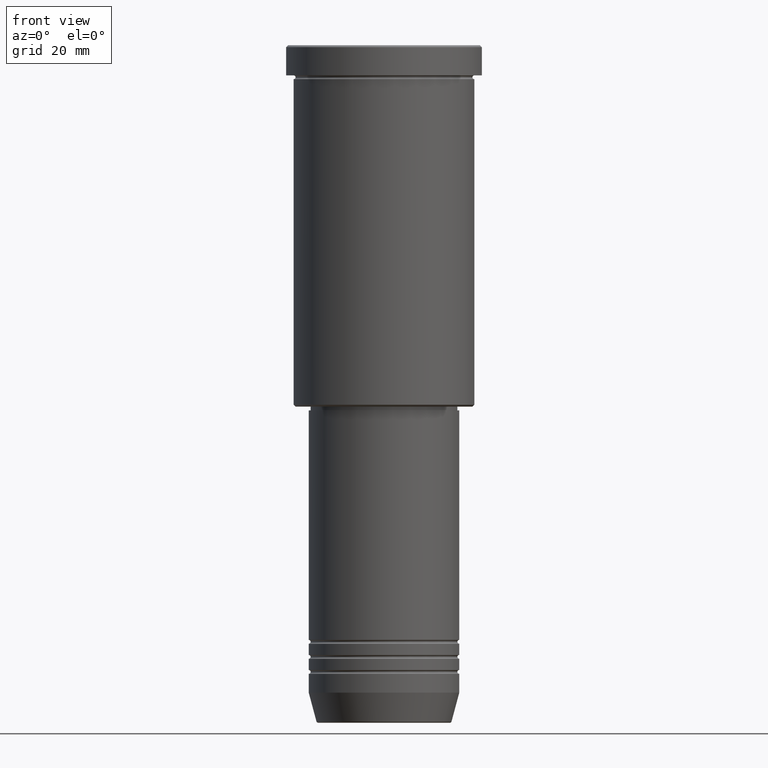
[diagram: clean part render]
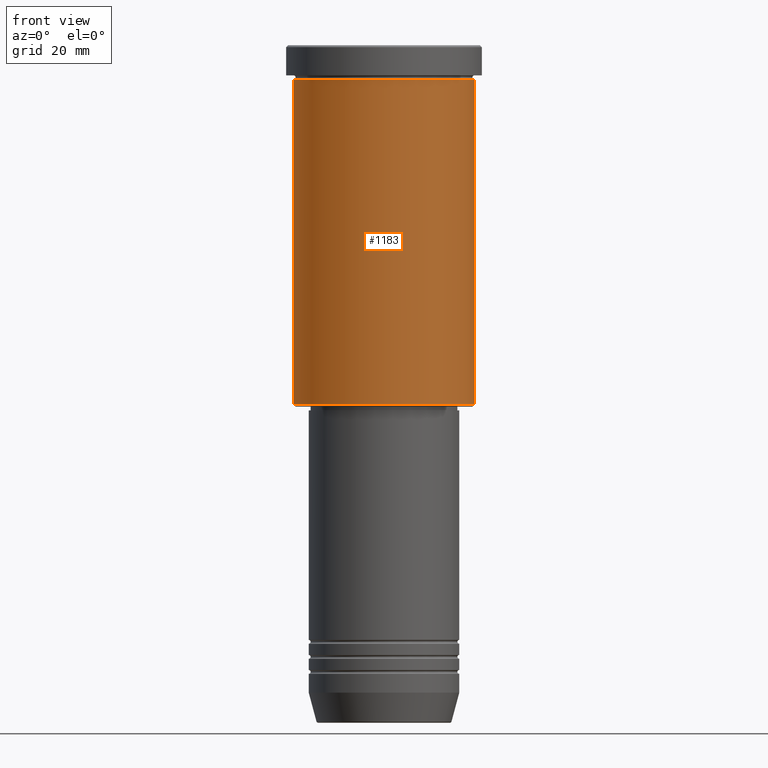
[diagram: same view with one face highlighted and labeled with its STEP entity id]
A machine part, front view. The second image highlights one B-rep face of the part: STEP entity #1183.
In plain terms, the highlighted cylindrical surface (partial cylindrical patch) has radius 24 mm, axis along (-0, -0, 1).
Its self-contained STEP definition (entity closure, byte-faithful):
#7 = CARTESIAN_POINT ( 'NONE',  ( 0.000000000000000000, 0.000000000000000000, -8.999999999999994671 ) ) ;
#16 = DIRECTION ( 'NONE',  ( -1.000000000000000000, 0.000000000000000000, 0.000000000000000000 ) ) ;
#40 = VERTEX_POINT ( 'NONE', #613 ) ;
#47 = VERTEX_POINT ( 'NONE', #811 ) ;
#98 = ORIENTED_EDGE ( 'NONE', *, *, #102, .T. ) ;
#102 = EDGE_CURVE ( 'NONE', #40, #517, #959, .T. ) ;
#110 = VECTOR ( 'NONE', #188, 1000.000000000000000 ) ;
#188 = DIRECTION ( 'NONE',  ( -0.000000000000000000, -0.000000000000000000, 1.000000000000000000 ) ) ;
#206 = DIRECTION ( 'NONE',  ( -0.000000000000000000, -0.000000000000000000, 1.000000000000000000 ) ) ;
#243 = AXIS2_PLACEMENT_3D ( 'NONE', #539, #867, #588 ) ;
#248 = AXIS2_PLACEMENT_3D ( 'NONE', #7, #714, #926 ) ;
#249 = EDGE_LOOP ( 'NONE', ( #523, #98, #513, #654 ) ) ;
#438 = CARTESIAN_POINT ( 'NONE',  ( -24.00000000000000000, 2.939152317953647894E-15, 0.000000000000000000 ) ) ;
#480 = CARTESIAN_POINT ( 'NONE',  ( 24.00000000000000000, 0.000000000000000000, 0.000000000000000000 ) ) ;
#513 = ORIENTED_EDGE ( 'NONE', *, *, #920, .T. ) ;
#514 = EDGE_CURVE ( 'NONE', #40, #47, #1077, .T. ) ;
#517 = VERTEX_POINT ( 'NONE', #558 ) ;
#523 = ORIENTED_EDGE ( 'NONE', *, *, #514, .F. ) ;
#539 = CARTESIAN_POINT ( 'NONE',  ( 0.000000000000000000, 0.000000000000000000, 0.000000000000000000 ) ) ;
#558 = CARTESIAN_POINT ( 'NONE',  ( 24.00000000000000000, 0.000000000000000000, -95.49999999999998579 ) ) ;
#567 = FACE_OUTER_BOUND ( 'NONE', #249, .T. ) ;
#588 = DIRECTION ( 'NONE',  ( 1.000000000000000000, 0.000000000000000000, 0.000000000000000000 ) ) ;
#613 = CARTESIAN_POINT ( 'NONE',  ( -24.00000000000000000, 2.939152317953647894E-15, -95.49999999999998579 ) ) ;
#622 = CYLINDRICAL_SURFACE ( 'NONE', #243, 24.00000000000000000 ) ;
#641 = VECTOR ( 'NONE', #1048, 1000.000000000000000 ) ;
#654 = ORIENTED_EDGE ( 'NONE', *, *, #738, .F. ) ;
#659 = CARTESIAN_POINT ( 'NONE',  ( 24.00000000000000000, 0.000000000000000000, -8.999999999999994671 ) ) ;
#714 = DIRECTION ( 'NONE',  ( -0.000000000000000000, -0.000000000000000000, 1.000000000000000000 ) ) ;
#738 = EDGE_CURVE ( 'NONE', #47, #958, #1059, .T. ) ;
#811 = CARTESIAN_POINT ( 'NONE',  ( -24.00000000000000000, 2.939152317953647894E-15, -8.999999999999994671 ) ) ;
#837 = AXIS2_PLACEMENT_3D ( 'NONE', #1009, #206, #16 ) ;
#867 = DIRECTION ( 'NONE',  ( -0.000000000000000000, -0.000000000000000000, 1.000000000000000000 ) ) ;
#920 = EDGE_CURVE ( 'NONE', #517, #958, #1087, .T. ) ;
#926 = DIRECTION ( 'NONE',  ( 1.000000000000000000, 0.000000000000000000, 0.000000000000000000 ) ) ;
#958 = VERTEX_POINT ( 'NONE', #659 ) ;
#959 = CIRCLE ( 'NONE', #837, 24.00000000000000000 ) ;
#1009 = CARTESIAN_POINT ( 'NONE',  ( 0.000000000000000000, 0.000000000000000000, -95.49999999999998579 ) ) ;
#1048 = DIRECTION ( 'NONE',  ( -0.000000000000000000, -0.000000000000000000, 1.000000000000000000 ) ) ;
#1059 = CIRCLE ( 'NONE', #248, 24.00000000000000000 ) ;
#1077 = LINE ( 'NONE', #438, #110 ) ;
#1087 = LINE ( 'NONE', #480, #641 ) ;
#1183 = ADVANCED_FACE ( 'NONE', ( #567 ), #622, .T. ) ;